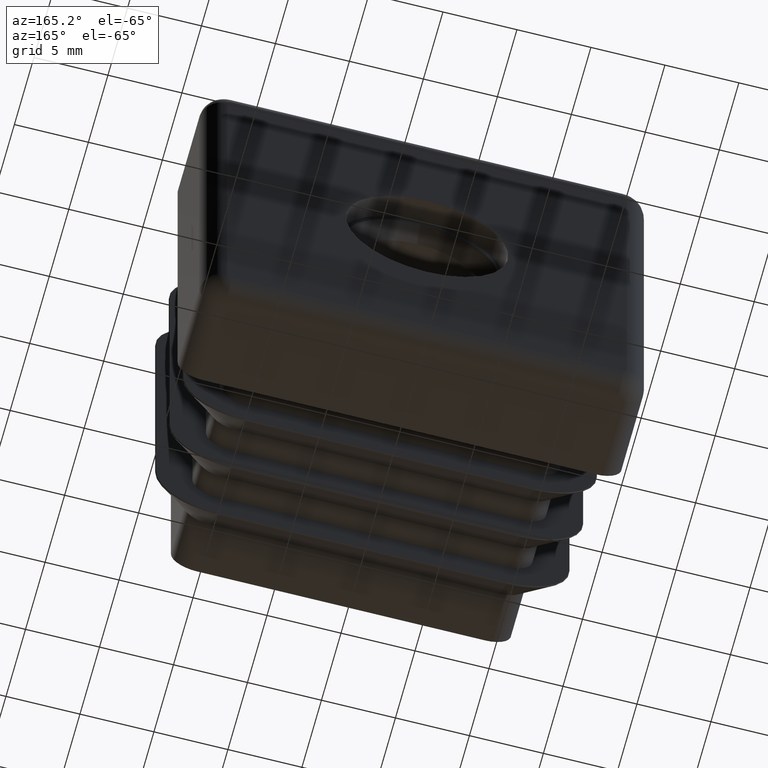
[diagram: clean part render]
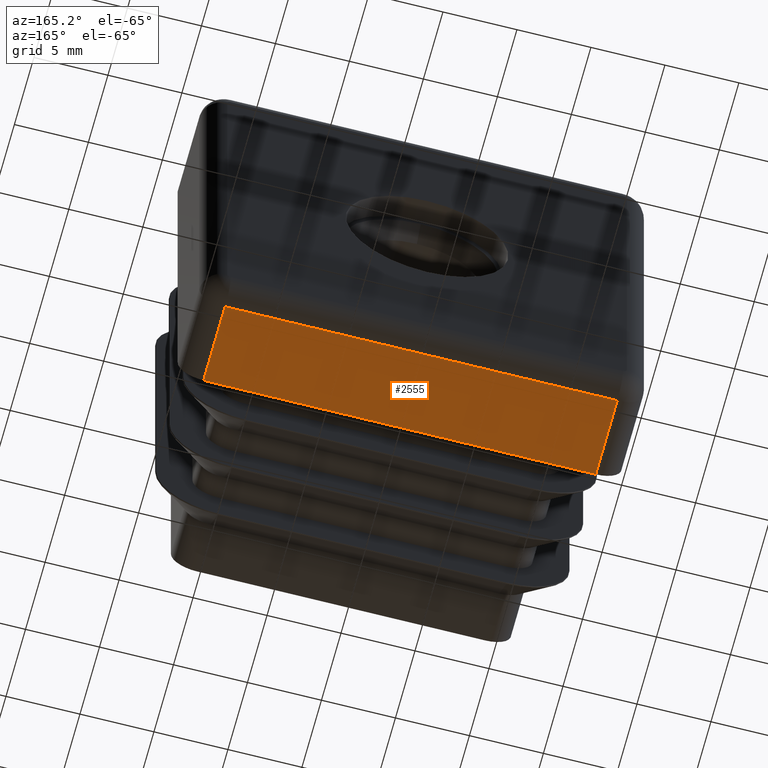
[diagram: same view with one face highlighted and labeled with its STEP entity id]
A machine part, auxiliary view. The second image highlights one B-rep face of the part: STEP entity #2555.
In plain terms, the highlighted planar face has unit normal (0, 0, 1).
Its self-contained STEP definition (entity closure, byte-faithful):
#1182 = CARTESIAN_POINT ( 'NONE',  ( -13.25000000000000178, 5.500000000000000000, -15.00000000000000178 ) ) ;
#2299 = CARTESIAN_POINT ( 'NONE',  ( 13.25000000000000355, 5.500000000000000000, -15.00000000000000178 ) ) ;
#2555 = ADVANCED_FACE ( 'NONE', ( #9208 ), #14265, .F. ) ;
#3335 = VERTEX_POINT ( 'NONE', #17068 ) ;
#3530 = VERTEX_POINT ( 'NONE', #19316 ) ;
#3872 = VERTEX_POINT ( 'NONE', #10039 ) ;
#4679 = EDGE_CURVE ( 'NONE', #3872, #3530, #18287, .T. ) ;
#5230 = EDGE_CURVE ( 'NONE', #10999, #3872, #20644, .T. ) ;
#5432 = ORIENTED_EDGE ( 'NONE', *, *, #5230, .T. ) ;
#5691 = LINE ( 'NONE', #19089, #8327 ) ;
#7060 = EDGE_LOOP ( 'NONE', ( #12637, #5432, #19788, #19204 ) ) ;
#8327 = VECTOR ( 'NONE', #13908, 1000.000000000000000 ) ;
#8445 = EDGE_CURVE ( 'NONE', #3530, #3335, #5691, .T. ) ;
#8860 = EDGE_CURVE ( 'NONE', #3335, #10999, #18437, .T. ) ;
#9208 = FACE_OUTER_BOUND ( 'NONE', #7060, .T. ) ;
#9943 = DIRECTION ( 'NONE',  ( -0.000000000000000000, 1.000000000000000000, -0.000000000000000000 ) ) ;
#10039 = CARTESIAN_POINT ( 'NONE',  ( 13.25000000000000355, 5.500000000000000000, -15.00000000000000178 ) ) ;
#10936 = CARTESIAN_POINT ( 'NONE',  ( -15.00000000000000178, 7.000000000000000000, -15.00000000000000178 ) ) ;
#10999 = VERTEX_POINT ( 'NONE', #1182 ) ;
#11003 = DIRECTION ( 'NONE',  ( 1.000000000000000000, -0.000000000000000000, -0.000000000000000000 ) ) ;
#11004 = DIRECTION ( 'NONE',  ( 0.000000000000000000, 0.000000000000000000, 1.000000000000000000 ) ) ;
#11785 = AXIS2_PLACEMENT_3D ( 'NONE', #10936, #11004, #17969 ) ;
#12637 = ORIENTED_EDGE ( 'NONE', *, *, #8860, .T. ) ;
#13411 = VECTOR ( 'NONE', #9943, 1000.000000000000000 ) ;
#13784 = VECTOR ( 'NONE', #18120, 1000.000000000000000 ) ;
#13908 = DIRECTION ( 'NONE',  ( -1.000000000000000000, -0.000000000000000000, -0.000000000000000000 ) ) ;
#14265 = PLANE ( 'NONE',  #11785 ) ;
#15137 = CARTESIAN_POINT ( 'NONE',  ( -13.25000000000000178, 7.000000000000000000, -15.00000000000000178 ) ) ;
#15602 = VECTOR ( 'NONE', #11003, 1000.000000000000000 ) ;
#17068 = CARTESIAN_POINT ( 'NONE',  ( -13.25000000000000178, 0.000000000000000000, -15.00000000000000178 ) ) ;
#17969 = DIRECTION ( 'NONE',  ( 1.000000000000000000, 0.000000000000000000, -0.000000000000000000 ) ) ;
#18120 = DIRECTION ( 'NONE',  ( 0.000000000000000000, -1.000000000000000000, 0.000000000000000000 ) ) ;
#18287 = LINE ( 'NONE', #21397, #13784 ) ;
#18437 = LINE ( 'NONE', #15137, #13411 ) ;
#19089 = CARTESIAN_POINT ( 'NONE',  ( -15.00000000000000178, 0.000000000000000000, -15.00000000000000178 ) ) ;
#19204 = ORIENTED_EDGE ( 'NONE', *, *, #8445, .T. ) ;
#19316 = CARTESIAN_POINT ( 'NONE',  ( 13.25000000000000355, 0.000000000000000000, -15.00000000000000178 ) ) ;
#19788 = ORIENTED_EDGE ( 'NONE', *, *, #4679, .T. ) ;
#20644 = LINE ( 'NONE', #2299, #15602 ) ;
#21397 = CARTESIAN_POINT ( 'NONE',  ( 13.25000000000000355, 7.000000000000000000, -15.00000000000000178 ) ) ;